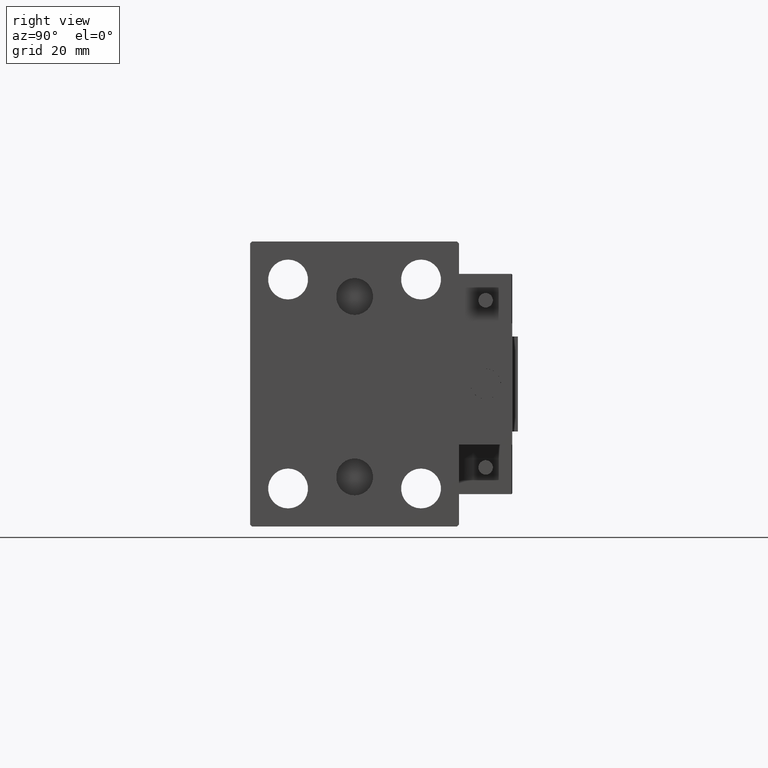
[diagram: clean part render]
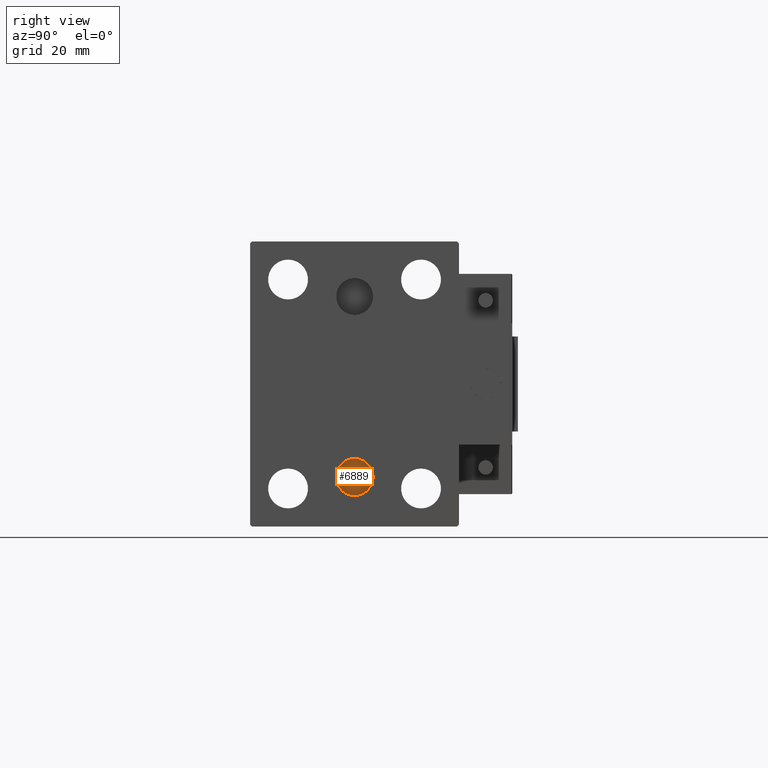
[diagram: same view with one face highlighted and labeled with its STEP entity id]
A machine part, right view. The second image highlights one B-rep face of the part: STEP entity #6889.
In plain terms, the highlighted planar face has unit normal (-1, 0, 0).
Its self-contained STEP definition (entity closure, byte-faithful):
#289 = EDGE_CURVE ( 'NONE', #28144, #46556, #43331, .T. ) ;
#1767 = DIRECTION ( 'NONE',  ( 0.000000000000000000, 0.000000000000000000, 1.000000000000000000 ) ) ;
#6609 = DIRECTION ( 'NONE',  ( 0.000000000000000000, 0.000000000000000000, 1.000000000000000000 ) ) ;
#6889 = ADVANCED_FACE ( 'NONE', ( #18657 ), #49439, .F. ) ;
#7288 = DIRECTION ( 'NONE',  ( -1.000000000000000000, -0.000000000000000000, 0.000000000000000000 ) ) ;
#7455 = AXIS2_PLACEMENT_3D ( 'NONE', #25770, #41160, #6609 ) ;
#11113 = AXIS2_PLACEMENT_3D ( 'NONE', #47708, #28512, #1767 ) ;
#14873 = CARTESIAN_POINT ( 'NONE',  ( 75.00000000000001421, 3.000384657911015074E-15, -24.49999999999999289 ) ) ;
#18657 = FACE_OUTER_BOUND ( 'NONE', #31175, .T. ) ;
#22681 = DIRECTION ( 'NONE',  ( 0.000000000000000000, 0.000000000000000000, 1.000000000000000000 ) ) ;
#23244 = CARTESIAN_POINT ( 'NONE',  ( 75.00000000000001421, 3.000384657911015074E-15, -29.35999999999999233 ) ) ;
#25770 = CARTESIAN_POINT ( 'NONE',  ( 75.00000000000001421, 3.000384657911015074E-15, -24.49999999999999289 ) ) ;
#26788 = CIRCLE ( 'NONE', #7455, 4.859999999999999432 ) ;
#28132 = ORIENTED_EDGE ( 'NONE', *, *, #35811, .T. ) ;
#28144 = VERTEX_POINT ( 'NONE', #23244 ) ;
#28512 = DIRECTION ( 'NONE',  ( 1.000000000000000000, 0.000000000000000000, -0.000000000000000000 ) ) ;
#29874 = AXIS2_PLACEMENT_3D ( 'NONE', #14873, #7288, #22681 ) ;
#31175 = EDGE_LOOP ( 'NONE', ( #41282, #28132 ) ) ;
#35811 = EDGE_CURVE ( 'NONE', #46556, #28144, #26788, .T. ) ;
#41160 = DIRECTION ( 'NONE',  ( 1.000000000000000000, 0.000000000000000000, -0.000000000000000000 ) ) ;
#41282 = ORIENTED_EDGE ( 'NONE', *, *, #289, .T. ) ;
#43331 = CIRCLE ( 'NONE', #11113, 4.859999999999999432 ) ;
#44107 = CARTESIAN_POINT ( 'NONE',  ( 75.00000000000001421, 3.595563002296627957E-15, -19.63999999999999346 ) ) ;
#46556 = VERTEX_POINT ( 'NONE', #44107 ) ;
#47708 = CARTESIAN_POINT ( 'NONE',  ( 75.00000000000001421, 3.000384657911015074E-15, -24.49999999999999289 ) ) ;
#49439 = PLANE ( 'NONE',  #29874 ) ;